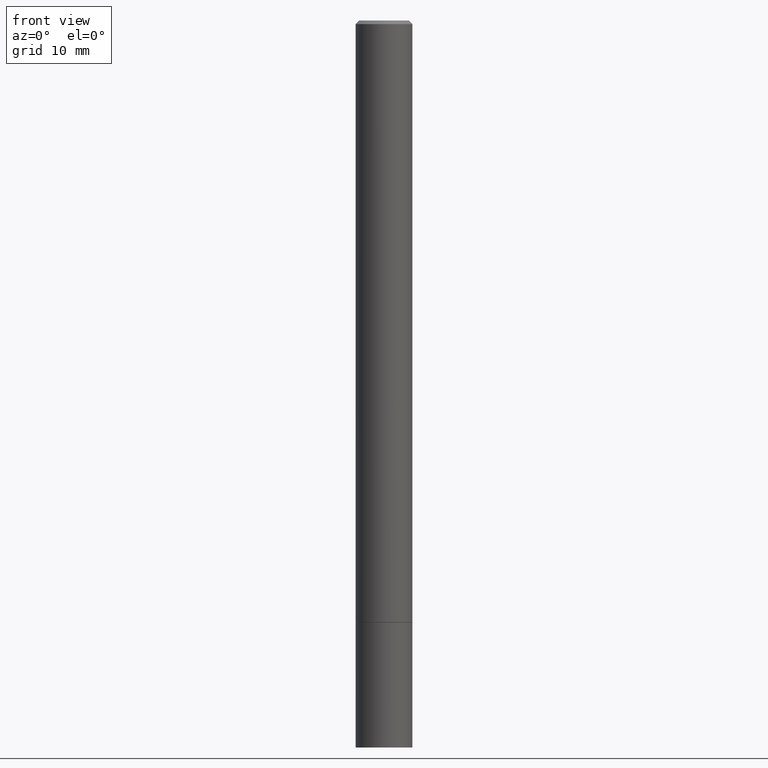
[diagram: clean part render]
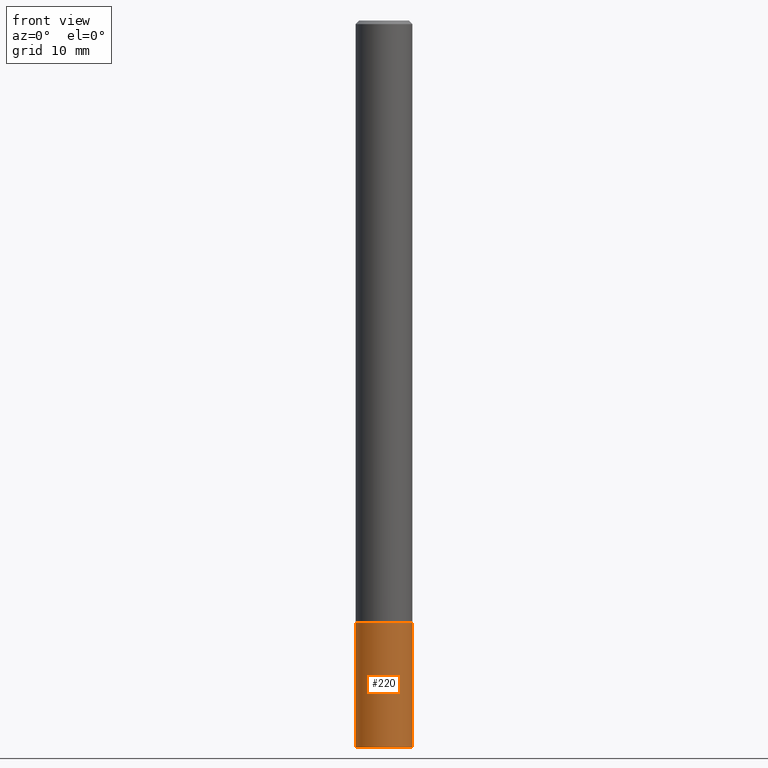
[diagram: same view with one face highlighted and labeled with its STEP entity id]
A machine part, front view. The second image highlights one B-rep face of the part: STEP entity #220.
In plain terms, the highlighted cylindrical surface (edge-blend (fillet) strip) has radius 3.9688 mm, axis along (-0, 0, 1).
Its self-contained STEP definition (entity closure, byte-faithful):
#2 = VERTEX_POINT ( 'NONE', #139 ) ;
#11 = VECTOR ( 'NONE', #337, 39.37007874015748143 ) ;
#15 = CARTESIAN_POINT ( 'NONE',  ( -0.1562500000000000000, -1.165463275018538400E-14, -4.000000000000000000 ) ) ;
#27 = DIRECTION ( 'NONE',  ( 1.000000000000000000, -6.982962677686262766E-15, 0.000000000000000000 ) ) ;
#54 = ORIENTED_EDGE ( 'NONE', *, *, #201, .T. ) ;
#71 = CARTESIAN_POINT ( 'NONE',  ( -0.1562500000000000000, -1.165463275018538400E-14, -3.312000000000000277 ) ) ;
#78 = LINE ( 'NONE', #362, #262 ) ;
#81 = EDGE_CURVE ( 'NONE', #290, #2, #143, .T. ) ;
#103 = AXIS2_PLACEMENT_3D ( 'NONE', #359, #104, #223 ) ;
#104 = DIRECTION ( 'NONE',  ( -2.445468806185136597E-29, 3.491481338843145583E-15, 1.000000000000000000 ) ) ;
#108 = FACE_OUTER_BOUND ( 'NONE', #213, .T. ) ;
#139 = CARTESIAN_POINT ( 'NONE',  ( 0.1562500000000000000, -1.265487411263697714E-14, -3.312000000000000277 ) ) ;
#143 = CIRCLE ( 'NONE', #340, 0.1562500000000000000 ) ;
#147 = CARTESIAN_POINT ( 'NONE',  ( 8.099392686085172175E-29, -1.156378619424849876E-14, -3.312000000000000277 ) ) ;
#183 = AXIS2_PLACEMENT_3D ( 'NONE', #189, #255, #307 ) ;
#188 = VERTEX_POINT ( 'NONE', #211 ) ;
#189 = CARTESIAN_POINT ( 'NONE',  ( 9.781875224740546387E-29, -1.396592535537258233E-14, -4.000000000000000000 ) ) ;
#201 = EDGE_CURVE ( 'NONE', #188, #2, #78, .T. ) ;
#207 = VERTEX_POINT ( 'NONE', #15 ) ;
#211 = CARTESIAN_POINT ( 'NONE',  ( 0.1562500000000000000, -1.505701327376106229E-14, -4.000000000000000000 ) ) ;
#213 = EDGE_LOOP ( 'NONE', ( #269, #344, #54, #295 ) ) ;
#220 = ADVANCED_FACE ( 'NONE', ( #108 ), #286, .T. ) ;
#223 = DIRECTION ( 'NONE',  ( 1.000000000000000000, -6.982962677686266711E-15, 4.876176775795936353E-29 ) ) ;
#253 = LINE ( 'NONE', #257, #11 ) ;
#255 = DIRECTION ( 'NONE',  ( -2.445468806185136597E-29, 3.491481338843145583E-15, 1.000000000000000000 ) ) ;
#257 = CARTESIAN_POINT ( 'NONE',  ( -0.1562500000000000000, 1.110223024625156540E-15, -7.685836078523291160E-30 ) ) ;
#262 = VECTOR ( 'NONE', #289, 39.37007874015748143 ) ;
#265 = DIRECTION ( 'NONE',  ( -2.445468806185136597E-29, 3.491481338843145583E-15, 1.000000000000000000 ) ) ;
#269 = ORIENTED_EDGE ( 'NONE', *, *, #363, .F. ) ;
#286 = CYLINDRICAL_SURFACE ( 'NONE', #103, 0.1562500000000000000 ) ;
#289 = DIRECTION ( 'NONE',  ( -2.445468806185136877E-29, 3.491481338843145188E-15, 1.000000000000000000 ) ) ;
#290 = VERTEX_POINT ( 'NONE', #71 ) ;
#295 = ORIENTED_EDGE ( 'NONE', *, *, #81, .F. ) ;
#307 = DIRECTION ( 'NONE',  ( 1.000000000000000000, -6.982962677686262766E-15, 0.000000000000000000 ) ) ;
#337 = DIRECTION ( 'NONE',  ( -2.445468806185136877E-29, 3.491481338843145188E-15, 1.000000000000000000 ) ) ;
#340 = AXIS2_PLACEMENT_3D ( 'NONE', #147, #265, #27 ) ;
#344 = ORIENTED_EDGE ( 'NONE', *, *, #355, .T. ) ;
#346 = CIRCLE ( 'NONE', #183, 0.1562500000000000000 ) ;
#355 = EDGE_CURVE ( 'NONE', #207, #188, #346, .T. ) ;
#359 = CARTESIAN_POINT ( 'NONE',  ( 0.000000000000000000, 0.000000000000000000, 0.000000000000000000 ) ) ;
#362 = CARTESIAN_POINT ( 'NONE',  ( 0.1562500000000000000, -1.091087918388479174E-15, 7.619026212181150377E-30 ) ) ;
#363 = EDGE_CURVE ( 'NONE', #207, #290, #253, .T. ) ;